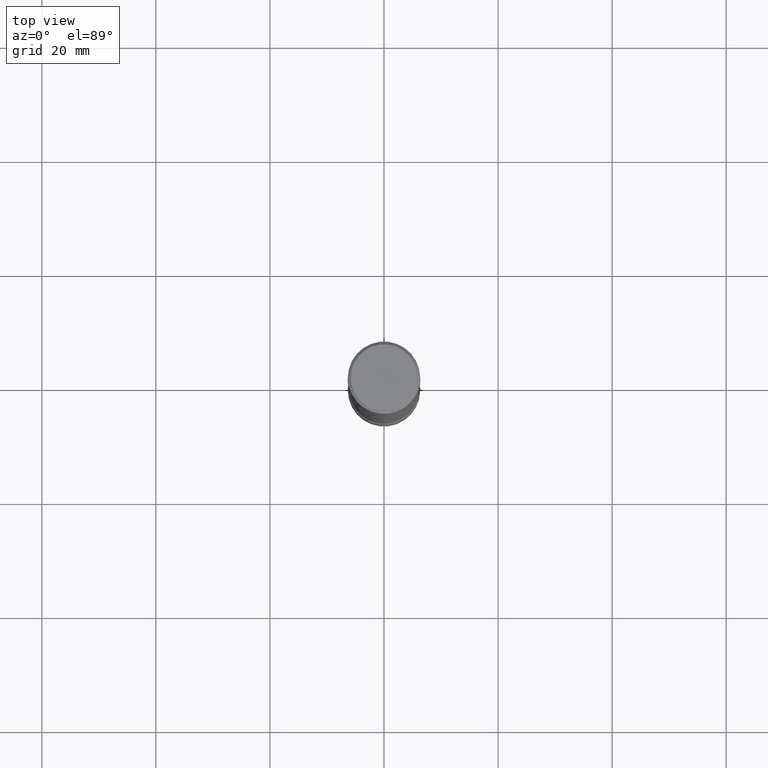
[diagram: clean part render]
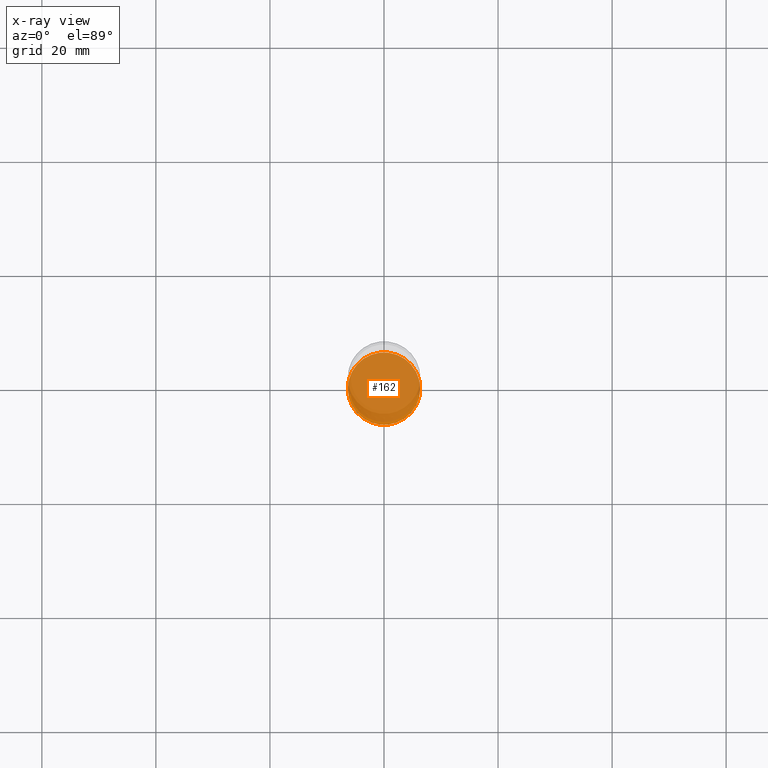
[diagram: x-ray — body ghosted, one internal face saturated and labeled with its STEP entity id]
A machine part, top view, then the same camera in x-ray: the body is ghosted and one INTERNAL B-rep face — a face not visible from any outside direction — is saturated and labeled: STEP entity #162.
In plain terms, the highlighted planar face has unit normal (0, -0, -1).
Its self-contained STEP definition (entity closure, byte-faithful):
#2 = DIRECTION ( 'NONE',  ( 1.000000000000000000, -6.982962677686264344E-15, 0.000000000000000000 ) ) ;
#3 = CARTESIAN_POINT ( 'NONE',  ( 1.069892602705997261E-28, -1.527523085743876365E-14, -4.375000000000000000 ) ) ;
#13 = AXIS2_PLACEMENT_3D ( 'NONE', #176, #509, #305 ) ;
#29 = ORIENTED_EDGE ( 'NONE', *, *, #152, .T. ) ;
#92 = DIRECTION ( 'NONE',  ( -2.445468806185136597E-29, 3.491481338843145583E-15, 1.000000000000000000 ) ) ;
#93 = VERTEX_POINT ( 'NONE', #328 ) ;
#138 = DIRECTION ( 'NONE',  ( -2.445468806185136597E-29, 3.491481338843145583E-15, 1.000000000000000000 ) ) ;
#152 = EDGE_CURVE ( 'NONE', #93, #457, #415, .T. ) ;
#154 = EDGE_CURVE ( 'NONE', #457, #93, #384, .T. ) ;
#162 = ADVANCED_FACE ( 'NONE', ( #382 ), #429, .F. ) ;
#176 = CARTESIAN_POINT ( 'NONE',  ( 1.069892602705997261E-28, -1.527523085743876365E-14, -4.375000000000000000 ) ) ;
#186 = DIRECTION ( 'NONE',  ( 1.000000000000000000, -6.982962677686264344E-15, 0.000000000000000000 ) ) ;
#238 = AXIS2_PLACEMENT_3D ( 'NONE', #467, #138, #186 ) ;
#255 = EDGE_LOOP ( 'NONE', ( #29, #477 ) ) ;
#305 = DIRECTION ( 'NONE',  ( -1.000000000000000000, 6.982962677686265922E-15, -4.876176775795935793E-29 ) ) ;
#328 = CARTESIAN_POINT ( 'NONE',  ( 0.2500000000000002220, -1.702097152686033033E-14, -4.375000000000000000 ) ) ;
#352 = CARTESIAN_POINT ( 'NONE',  ( -0.2500000000000002220, -1.456377582638566980E-14, -4.375000000000000000 ) ) ;
#382 = FACE_OUTER_BOUND ( 'NONE', #255, .T. ) ;
#384 = CIRCLE ( 'NONE', #454, 0.2500000000000002220 ) ;
#415 = CIRCLE ( 'NONE', #238, 0.2500000000000002220 ) ;
#429 = PLANE ( 'NONE',  #13 ) ;
#454 = AXIS2_PLACEMENT_3D ( 'NONE', #3, #92, #2 ) ;
#457 = VERTEX_POINT ( 'NONE', #352 ) ;
#467 = CARTESIAN_POINT ( 'NONE',  ( 1.069892602705997261E-28, -1.527523085743876365E-14, -4.375000000000000000 ) ) ;
#477 = ORIENTED_EDGE ( 'NONE', *, *, #154, .T. ) ;
#509 = DIRECTION ( 'NONE',  ( 2.438088387897960049E-29, -3.491481338843145188E-15, -1.000000000000000000 ) ) ;